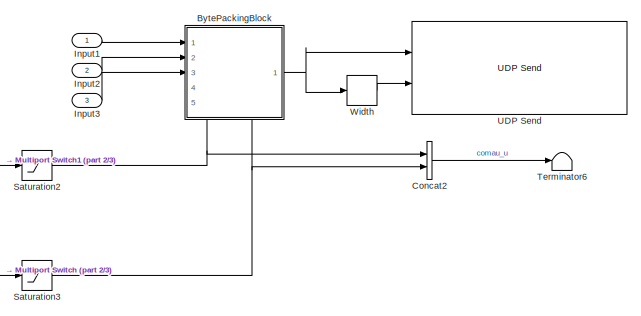
[diagram: root canvas - part 1/3, top right region]
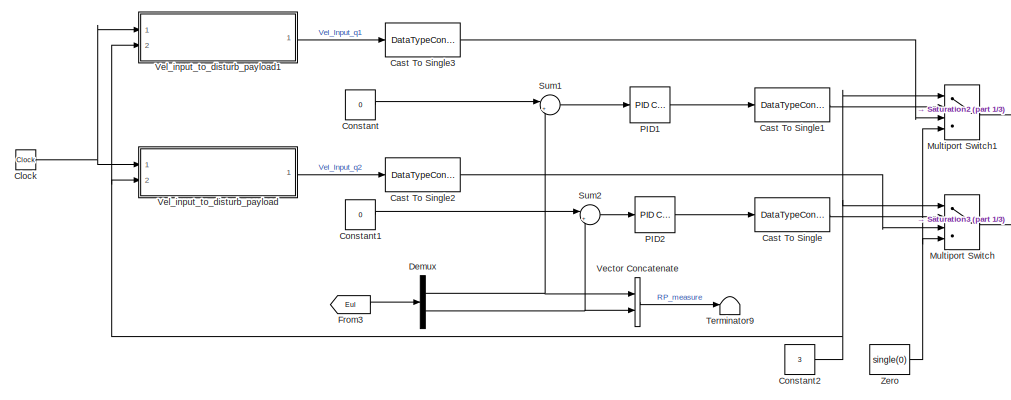
[diagram: root canvas - part 2/3, top left region]
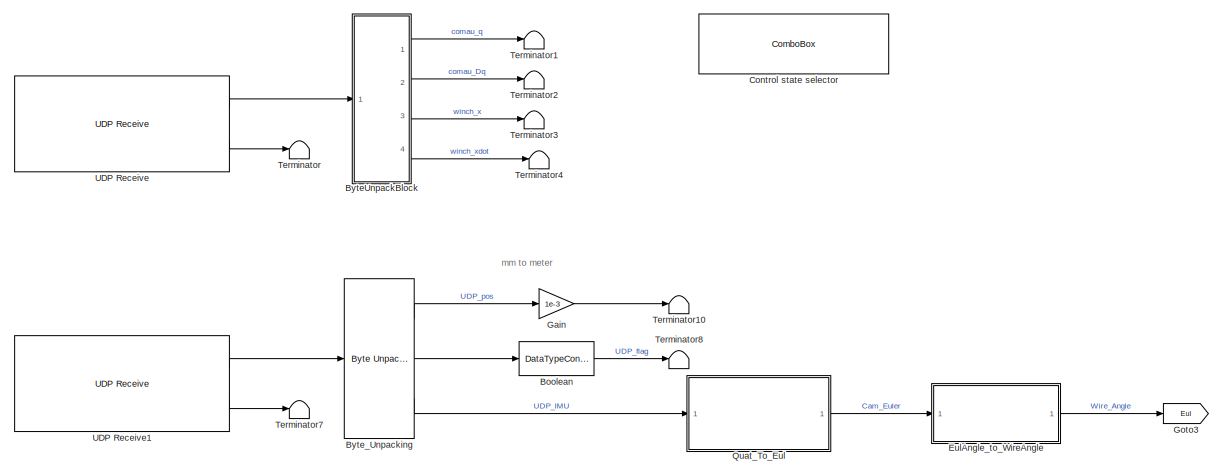
[diagram: root canvas - part 3/3, full width, bottom band]
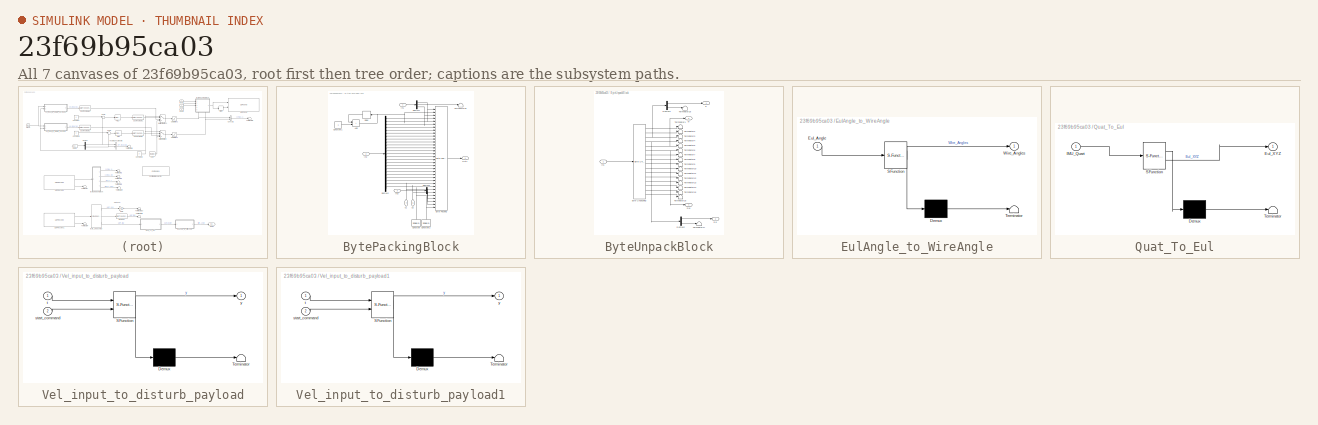
[diagram: thumbnail index - all 7 canvases of the model, root first then tree order]
MODEL slx_23f69b95ca03
KIND model
CONFIG AbsTol = auto
CONFIG EnableMultiTasking = on
CONFIG FixedStep = Ts
CONFIG MaxStep = auto
CONFIG MinStep = auto
CONFIG RelTol = 1e-3
CONFIG SampleTimeConstraint = Unconstrained
CONFIG SolverName = ode4
CONFIG StartTime = 0.0
CONFIG StopTime = inf
WORKSPACE source: mxarray member
WORKSPACE AU1 = 0.174532925199
WORKSPACE AU2 = 0
WORKSPACE AU3 = 0
WORKSPACE AW = 0
WORKSPACE FU1 = 0.1
WORKSPACE FU2 = 0
WORKSPACE FU3 = 0
WORKSPACE FW = 0
WORKSPACE GainU1 = 1
WORKSPACE GainU2 = 1
WORKSPACE GainU3 = 1
WORKSPACE GainW = 1
WORKSPACE KD1 = 0
WORKSPACE KD2 = 0
WORKSPACE KD3 = 0
WORKSPACE KI1 = 0
WORKSPACE KI2 = 0
WORKSPACE KI3 = 0
WORKSPACE KP1 = 1
WORKSPACE KP2 = 1
WORKSPACE KP3 = 1
WORKSPACE N1 = 100
WORKSPACE N2 = 100
WORKSPACE N3 = 100
WORKSPACE SatU1 = 0.174532920122
WORKSPACE SatU2 = 0.174532920122
WORKSPACE SatU3 = 0.174532920122
WORKSPACE SatW = 0.300000011921
WORKSPACE Ts = 0.001
WORKSPACE controlMode = 0
WORKSPACE qref = [0.698131680489 -0.523598790169 -1.57079637051]
BLOCK [DataTypeConversion] Boolean
  OutDataTypeStr = boolean
  RndMeth = Floor
  SaturateOnIntegerOverflow = off
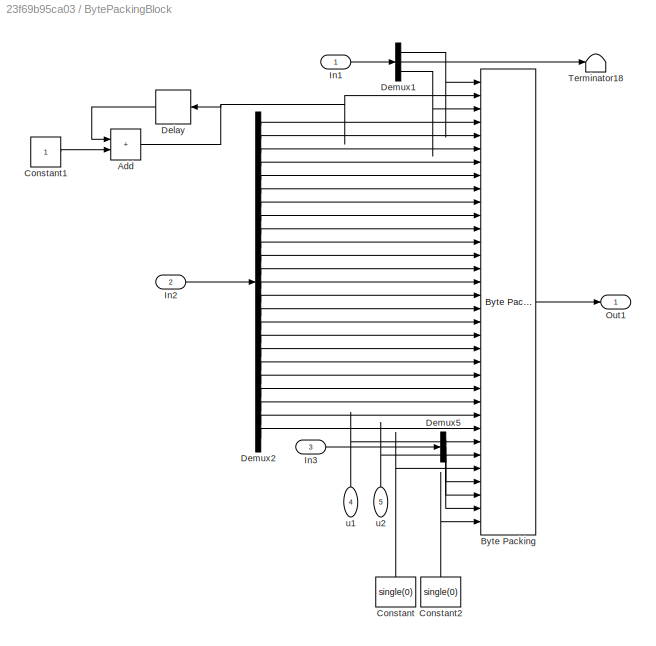
BLOCK [SubSystem] BytePackingBlock
  NameLocation = top
  PortSchema = {"entries":[{"content":{"sides":[{"content":{"connectorIds":["In1","In2","In3"]},"type":"ConnectorPlacement.EquallySpacedRectSide","uuid":"2ce4a3a0-ffcc-43d7-9a0a-8eda699e79f7"},{"content":{"connectorIds":["Out1"],"side":"RIGHT"},"type":"ConnectorPlacement.EquallySpacedRectSide","uuid":"6b0835cb-1c02-4104-b44f-3bd25ad1f1a4"},{"content":{"connectorIds":[],"side":"TOP"},"type":"ConnectorPlacement.Eq...<+407ch>
  Ports = [5, 1]
  RequestExecContextInheritance = off
BLOCK [Sum] BytePackingBlock/Add
  IconShape = rectangular
  Ports = [2, 1]
BLOCK [Reference] BytePackingBlock/Byte Packing  REF=slrealtimeutilitieslib/Byte Packing
  Ports = [34, 1]
  SourceBlock = slrealtimeutilitieslib/Byte Packing
  SourceProductBaseCode = XP
  SourceType = slrealtimebytepacking
BLOCK [Constant] BytePackingBlock/Constant
  NameLocation = right
  Value = single(0)
BLOCK [Constant] BytePackingBlock/Constant1
  OutDataTypeStr = uint32
BLOCK [Constant] BytePackingBlock/Constant2
  NameLocation = right
  Value = single(0)
BLOCK [Delay] BytePackingBlock/Delay
  DelayLength = 1
  InputPortMap = u0
  Ports = [1, 1]
BLOCK [Demux] BytePackingBlock/Demux1
  Outputs = 3
  Ports = [1, 3]
BLOCK [Demux] BytePackingBlock/Demux2
  Outputs = 24
  Ports = [1, 24]
BLOCK [Demux] BytePackingBlock/Demux5
  Outputs = 3
  Ports = [1, 3]
BLOCK [Inport] BytePackingBlock/In1
BLOCK [Inport] BytePackingBlock/In2
  Port = 2
BLOCK [Inport] BytePackingBlock/In3
  Port = 3
BLOCK [Outport] BytePackingBlock/Out1
BLOCK [Terminator] BytePackingBlock/Terminator18
BLOCK [Inport] BytePackingBlock/u1
  Port = 4
BLOCK [Inport] BytePackingBlock/u2
  Port = 5
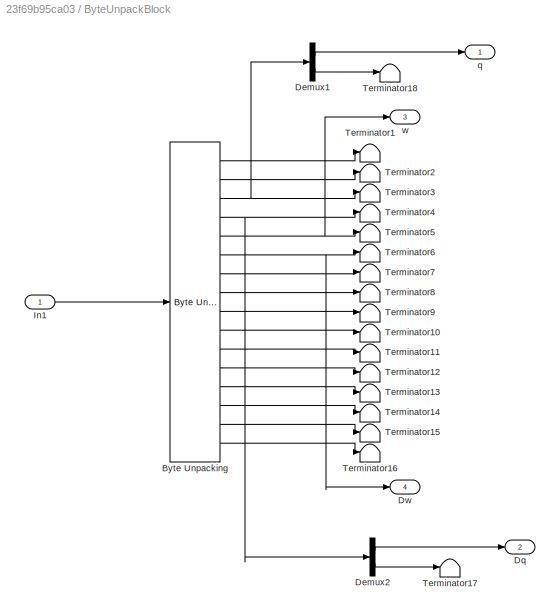
BLOCK [SubSystem] ByteUnpackBlock
  Ports = [1, 4]
  RequestExecContextInheritance = off
BLOCK [Reference] ByteUnpackBlock/Byte Unpacking  REF=slrealtimeutilitieslib/Byte Unpacking
  Ports = [1, 16]
  SourceBlock = slrealtimeutilitieslib/Byte Unpacking
  SourceProductBaseCode = XP
  SourceType = slreraltimebytepacking
BLOCK [Demux] ByteUnpackBlock/Demux1
  Outputs = 2
  Ports = [1, 2]
BLOCK [Demux] ByteUnpackBlock/Demux2
  Outputs = 2
  Ports = [1, 2]
BLOCK [Outport] ByteUnpackBlock/Dq
  Port = 2
BLOCK [Outport] ByteUnpackBlock/Dw
  Port = 4
BLOCK [Inport] ByteUnpackBlock/In1
BLOCK [Terminator] ByteUnpackBlock/Terminator1
BLOCK [Terminator] ByteUnpackBlock/Terminator10
BLOCK [Terminator] ByteUnpackBlock/Terminator11
BLOCK [Terminator] ByteUnpackBlock/Terminator12
BLOCK [Terminator] ByteUnpackBlock/Terminator13
BLOCK [Terminator] ByteUnpackBlock/Terminator14
BLOCK [Terminator] ByteUnpackBlock/Terminator15
BLOCK [Terminator] ByteUnpackBlock/Terminator16
BLOCK [Terminator] ByteUnpackBlock/Terminator17
BLOCK [Terminator] ByteUnpackBlock/Terminator18
BLOCK [Terminator] ByteUnpackBlock/Terminator2
BLOCK [Terminator] ByteUnpackBlock/Terminator3
BLOCK [Terminator] ByteUnpackBlock/Terminator4
BLOCK [Terminator] ByteUnpackBlock/Terminator5
BLOCK [Terminator] ByteUnpackBlock/Terminator6
BLOCK [Terminator] ByteUnpackBlock/Terminator7
BLOCK [Terminator] ByteUnpackBlock/Terminator8
BLOCK [Terminator] ByteUnpackBlock/Terminator9
BLOCK [Outport] ByteUnpackBlock/q
BLOCK [Outport] ByteUnpackBlock/w
  Port = 3
BLOCK [Reference] Byte_Unpacking  REF=slrealtimeutilitieslib/Byte Unpacking
  Ports = [1, 3]
  SourceBlock = slrealtimeutilitieslib/Byte Unpacking
  SourceProductBaseCode = XP
  SourceType = slreraltimebytepacking
BLOCK [DataTypeConversion] Cast To Single
  OutDataTypeStr = single
  RndMeth = Floor
  SaturateOnIntegerOverflow = off
BLOCK [DataTypeConversion] Cast To Single1
  OutDataTypeStr = single
  RndMeth = Floor
  SaturateOnIntegerOverflow = off
BLOCK [DataTypeConversion] Cast To Single2
  OutDataTypeStr = single
  RndMeth = Floor
  SaturateOnIntegerOverflow = off
BLOCK [DataTypeConversion] Cast To Single3
  OutDataTypeStr = single
  RndMeth = Floor
  SaturateOnIntegerOverflow = off
BLOCK [Clock] Clock
BLOCK [Concatenate] Concat2
  ConcatenateDimension = 2
  Ports = [2, 1]
BLOCK [Constant] Constant
  Value = 0
BLOCK [Constant] Constant1
  Value = 0
BLOCK [Constant] Constant2
  Value = 3
BLOCK [ComboBox] Control state selector
  NameLocation = right
  SelectedLabel = Zero-Ref
BLOCK [Demux] Demux
  Outputs = 2
  Ports = [1, 2]
BLOCK [SubSystem] EulAngle_to_WireAngle
  ErrorFcn = Stateflow.Translate.translate
  PermitHierarchicalResolution = ExplicitOnly
  Ports = [1, 1]
  RequestExecContextInheritance = off
  SFBlockType = MATLAB Function
  TreatAsAtomicUnit = on
BLOCK [Demux] EulAngle_to_WireAngle/ Demux 
  Outputs = 1
  Ports = [1, 1]
BLOCK [S-Function] EulAngle_to_WireAngle/ SFunction 
  EnableBusSupport = on
  FunctionName = sf_sfun
  PortCounts = [1 2]
  Ports = [1, 2]
  SFcnIsStateOwnerBlock = off
  SFunctionDeploymentMode = off
  Tag = Stateflow S-Function 1
BLOCK [Terminator] EulAngle_to_WireAngle/ Terminator 
BLOCK [Inport] EulAngle_to_WireAngle/Eul_Angle
BLOCK [Outport] EulAngle_to_WireAngle/Wire_Angles
BLOCK [From] From3
  GotoTag = Eul
BLOCK [Gain] Gain
  Gain = 1e-3
BLOCK [Goto] Goto3
  GotoTag = Eul
BLOCK [Inport] Input1
  OutDataTypeStr = uint32
BLOCK [Inport] Input2
  OutDataTypeStr = single
  Port = 2
BLOCK [Inport] Input3
  OutDataTypeStr = single
  Port = 3
BLOCK [MultiPortSwitch] Multiport Switch
  InputSameDT = off
  Ports = [4, 1]
  SaturateOnIntegerOverflow = off
BLOCK [MultiPortSwitch] Multiport Switch1
  InputSameDT = off
  Ports = [4, 1]
  SaturateOnIntegerOverflow = off
BLOCK [Reference] PID1  REF=slpidlib/PID Controller
  Ports = [1, 1]
  SourceBlock = slpidlib/PID Controller
  SourceProductBaseCode = SL
  SourceType = PID 1dof
BLOCK [Reference] PID2  REF=slpidlib/PID Controller
  Ports = [1, 1]
  SourceBlock = slpidlib/PID Controller
  SourceProductBaseCode = SL
  SourceType = PID 1dof
BLOCK [SubSystem] Quat_To_Eul
  ErrorFcn = Stateflow.Translate.translate
  PermitHierarchicalResolution = ExplicitOnly
  Ports = [1, 1]
  RequestExecContextInheritance = off
  SFBlockType = MATLAB Function
  TreatAsAtomicUnit = on
BLOCK [Demux] Quat_To_Eul/ Demux 
  Outputs = 1
  Ports = [1, 1]
BLOCK [S-Function] Quat_To_Eul/ SFunction 
  EnableBusSupport = on
  FunctionName = sf_sfun
  PortCounts = [1 2]
  Ports = [1, 2]
  SFcnIsStateOwnerBlock = off
  SFunctionDeploymentMode = off
  Tag = Stateflow S-Function 2
BLOCK [Terminator] Quat_To_Eul/ Terminator 
BLOCK [Outport] Quat_To_Eul/Eul_XYZ
BLOCK [Inport] Quat_To_Eul/IMU_Quart
BLOCK [Saturate] Saturation2
  LowerLimit = -0.4
  UpperLimit = 0.4
BLOCK [Saturate] Saturation3
  LowerLimit = -0.4
  UpperLimit = 0.4
BLOCK [Sum] Sum1
  Inputs = |+-
  Ports = [2, 1]
BLOCK [Sum] Sum2
  Inputs = |+-
  Ports = [2, 1]
BLOCK [Terminator] Terminator
BLOCK [Terminator] Terminator1
BLOCK [Terminator] Terminator10
BLOCK [Terminator] Terminator2
BLOCK [Terminator] Terminator3
BLOCK [Terminator] Terminator4
BLOCK [Terminator] Terminator6
BLOCK [Terminator] Terminator7
BLOCK [Terminator] Terminator8
BLOCK [Terminator] Terminator9
BLOCK [Reference] UDP Receive  REF=slrealtimeiplib/UDP Receive
  Ports = [0, 2]
  SourceBlock = slrealtimeiplib/UDP Receive
  SourceProductBaseCode = XP
  SourceType = slrealtimeudpreceive
BLOCK [Reference] UDP Receive1  REF=slrealtimeiplib/UDP Receive
  Ports = [0, 2]
  SourceBlock = slrealtimeiplib/UDP Receive
  SourceProductBaseCode = XP
  SourceType = slrealtimeudpreceive
BLOCK [Reference] UDP Send  REF=slrealtimeiplib/UDP Send
  Ports = [2]
  SourceBlock = slrealtimeiplib/UDP Send
  SourceProductBaseCode = XP
  SourceType = slrealtimeudpsend
BLOCK [Concatenate] Vector Concatenate
  Ports = [2, 1]
BLOCK [SubSystem] Vel_input_to_disturb_payload
  ErrorFcn = Stateflow.Translate.translate
  PermitHierarchicalResolution = ExplicitOnly
  Ports = [2, 1]
  RequestExecContextInheritance = off
  SFBlockType = MATLAB Function
  TreatAsAtomicUnit = on
BLOCK [Demux] Vel_input_to_disturb_payload/ Demux 
  Outputs = 1
  Ports = [1, 1]
BLOCK [S-Function] Vel_input_to_disturb_payload/ SFunction 
  EnableBusSupport = on
  FunctionName = sf_sfun
  PortCounts = [2 2]
  Ports = [2, 2]
  SFcnIsStateOwnerBlock = off
  SFunctionDeploymentMode = off
  Tag = Stateflow S-Function 5
BLOCK [Terminator] Vel_input_to_disturb_payload/ Terminator 
BLOCK [Inport] Vel_input_to_disturb_payload/start_command
  Port = 2
BLOCK [Inport] Vel_input_to_disturb_payload/t
BLOCK [Outport] Vel_input_to_disturb_payload/y
BLOCK [SubSystem] Vel_input_to_disturb_payload1
  ErrorFcn = Stateflow.Translate.translate
  PermitHierarchicalResolution = ExplicitOnly
  Ports = [2, 1]
  RequestExecContextInheritance = off
  SFBlockType = MATLAB Function
  TreatAsAtomicUnit = on
BLOCK [Demux] Vel_input_to_disturb_payload1/ Demux 
  Outputs = 1
  Ports = [1, 1]
BLOCK [S-Function] Vel_input_to_disturb_payload1/ SFunction 
  EnableBusSupport = on
  FunctionName = sf_sfun
  PortCounts = [2 2]
  Ports = [2, 2]
  SFcnIsStateOwnerBlock = off
  SFunctionDeploymentMode = off
  Tag = Stateflow S-Function 6
BLOCK [Terminator] Vel_input_to_disturb_payload1/ Terminator 
BLOCK [Inport] Vel_input_to_disturb_payload1/start_command
  Port = 2
BLOCK [Inport] Vel_input_to_disturb_payload1/t
BLOCK [Outport] Vel_input_to_disturb_payload1/y
BLOCK [Width] Width
BLOCK [Constant] Zero
  Value = single(0)
ANNOTATION (root): mm to meter
LINE Boolean:1 -> Terminator8:1
NET BytePackingBlock/Add:1 -> BytePackingBlock/Byte Packing:2, BytePackingBlock/Delay:1
LINE BytePackingBlock/Byte Packing:1 -> BytePackingBlock/Out1:1
LINE BytePackingBlock/Constant1:1 -> BytePackingBlock/Add:2
LINE BytePackingBlock/Constant2:1 -> BytePackingBlock/Byte Packing:34
LINE BytePackingBlock/Constant:1 -> BytePackingBlock/Byte Packing:30
LINE BytePackingBlock/Delay:1 -> BytePackingBlock/Add:1
LINE BytePackingBlock/Demux1:1 -> BytePackingBlock/Byte Packing:1
LINE BytePackingBlock/Demux1:2 -> BytePackingBlock/Terminator18:1
LINE BytePackingBlock/Demux1:3 -> BytePackingBlock/Byte Packing:3
LINE BytePackingBlock/Demux2:1 -> BytePackingBlock/Byte Packing:4
LINE BytePackingBlock/Demux2:10 -> BytePackingBlock/Byte Packing:13
LINE BytePackingBlock/Demux2:11 -> BytePackingBlock/Byte Packing:14
LINE BytePackingBlock/Demux2:12 -> BytePackingBlock/Byte Packing:15
LINE BytePackingBlock/Demux2:13 -> BytePackingBlock/Byte Packing:16
LINE BytePackingBlock/Demux2:14 -> BytePackingBlock/Byte Packing:17
LINE BytePackingBlock/Demux2:15 -> BytePackingBlock/Byte Packing:18
LINE BytePackingBlock/Demux2:16 -> BytePackingBlock/Byte Packing:19
LINE BytePackingBlock/Demux2:17 -> BytePackingBlock/Byte Packing:20
LINE BytePackingBlock/Demux2:18 -> BytePackingBlock/Byte Packing:21
LINE BytePackingBlock/Demux2:19 -> BytePackingBlock/Byte Packing:22
LINE BytePackingBlock/Demux2:2 -> BytePackingBlock/Byte Packing:5
LINE BytePackingBlock/Demux2:20 -> BytePackingBlock/Byte Packing:23
LINE BytePackingBlock/Demux2:21 -> BytePackingBlock/Byte Packing:24
LINE BytePackingBlock/Demux2:22 -> BytePackingBlock/Byte Packing:25
LINE BytePackingBlock/Demux2:23 -> BytePackingBlock/Byte Packing:26
LINE BytePackingBlock/Demux2:24 -> BytePackingBlock/Byte Packing:27
LINE BytePackingBlock/Demux2:3 -> BytePackingBlock/Byte Packing:6
LINE BytePackingBlock/Demux2:4 -> BytePackingBlock/Byte Packing:7
LINE BytePackingBlock/Demux2:5 -> BytePackingBlock/Byte Packing:8
LINE BytePackingBlock/Demux2:6 -> BytePackingBlock/Byte Packing:9
LINE BytePackingBlock/Demux2:7 -> BytePackingBlock/Byte Packing:10
LINE BytePackingBlock/Demux2:8 -> BytePackingBlock/Byte Packing:11
LINE BytePackingBlock/Demux2:9 -> BytePackingBlock/Byte Packing:12
LINE BytePackingBlock/Demux5:1 -> BytePackingBlock/Byte Packing:31
LINE BytePackingBlock/Demux5:2 -> BytePackingBlock/Byte Packing:32
LINE BytePackingBlock/Demux5:3 -> BytePackingBlock/Byte Packing:33
LINE BytePackingBlock/In1:1 -> BytePackingBlock/Demux1:1
LINE BytePackingBlock/In2:1 -> BytePackingBlock/Demux2:1
LINE BytePackingBlock/In3:1 -> BytePackingBlock/Demux5:1
LINE BytePackingBlock/u1:1 -> BytePackingBlock/Byte Packing:28
LINE BytePackingBlock/u2:1 -> BytePackingBlock/Byte Packing:29
NET BytePackingBlock:1 -> UDP Send:1, Width:1
LINE ByteUnpackBlock/Byte Unpacking:1 -> ByteUnpackBlock/Terminator1:1
LINE ByteUnpackBlock/Byte Unpacking:10 -> ByteUnpackBlock/Terminator10:1
LINE ByteUnpackBlock/Byte Unpacking:11 -> ByteUnpackBlock/Terminator11:1
LINE ByteUnpackBlock/Byte Unpacking:12 -> ByteUnpackBlock/Terminator12:1
LINE ByteUnpackBlock/Byte Unpacking:13 -> ByteUnpackBlock/Terminator13:1
LINE ByteUnpackBlock/Byte Unpacking:14 -> ByteUnpackBlock/Terminator14:1
LINE ByteUnpackBlock/Byte Unpacking:15 -> ByteUnpackBlock/Terminator15:1
LINE ByteUnpackBlock/Byte Unpacking:16 -> ByteUnpackBlock/Terminator16:1
LINE ByteUnpackBlock/Byte Unpacking:2 -> ByteUnpackBlock/Terminator2:1
NET ByteUnpackBlock/Byte Unpacking:3 -> ByteUnpackBlock/Demux1:1, ByteUnpackBlock/Terminator3:1
NET ByteUnpackBlock/Byte Unpacking:4 -> ByteUnpackBlock/Demux2:1, ByteUnpackBlock/Terminator4:1
NET ByteUnpackBlock/Byte Unpacking:5 -> ByteUnpackBlock/Terminator5:1, ByteUnpackBlock/w:1
NET ByteUnpackBlock/Byte Unpacking:6 -> ByteUnpackBlock/Dw:1, ByteUnpackBlock/Terminator6:1
LINE ByteUnpackBlock/Byte Unpacking:7 -> ByteUnpackBlock/Terminator7:1
LINE ByteUnpackBlock/Byte Unpacking:8 -> ByteUnpackBlock/Terminator8:1
LINE ByteUnpackBlock/Byte Unpacking:9 -> ByteUnpackBlock/Terminator9:1
LINE ByteUnpackBlock/Demux1:1 -> ByteUnpackBlock/q:1
LINE ByteUnpackBlock/Demux1:2 -> ByteUnpackBlock/Terminator18:1
LINE ByteUnpackBlock/Demux2:1 -> ByteUnpackBlock/Dq:1
LINE ByteUnpackBlock/Demux2:2 -> ByteUnpackBlock/Terminator17:1
LINE ByteUnpackBlock/In1:1 -> ByteUnpackBlock/Byte Unpacking:1
LINE ByteUnpackBlock:1 -> Terminator1:1
LINE ByteUnpackBlock:2 -> Terminator2:1
LINE ByteUnpackBlock:3 -> Terminator3:1
LINE ByteUnpackBlock:4 -> Terminator4:1
LINE Byte_Unpacking:1 -> Gain:1
LINE Byte_Unpacking:2 -> Boolean:1
LINE Byte_Unpacking:3 -> Quat_To_Eul:1
LINE Cast To Single1:1 -> Multiport Switch1:2
LINE Cast To Single2:1 -> Multiport Switch:3
LINE Cast To Single3:1 -> Multiport Switch1:3
LINE Cast To Single:1 -> Multiport Switch:2
NET Clock:1 -> Vel_input_to_disturb_payload1:1, Vel_input_to_disturb_payload:1
LINE Concat2:1 -> Terminator6:1
LINE Constant1:1 -> Sum2:1
NET Constant2:1 -> Multiport Switch1:1, Multiport Switch:1, Vel_input_to_disturb_payload1:2, Vel_input_to_disturb_payload:2
LINE Constant:1 -> Sum1:1
NET Demux:1 -> Sum1:2, Vector Concatenate:1
NET Demux:2 -> Sum2:2, Vector Concatenate:2
LINE EulAngle_to_WireAngle:1 -> Goto3:1
LINE From3:1 -> Demux:1
LINE Gain:1 -> Terminator10:1
LINE Input1:1 -> BytePackingBlock:1
LINE Input2:1 -> BytePackingBlock:2
LINE Input3:1 -> BytePackingBlock:3
LINE Multiport Switch1:1 -> Saturation2:1
LINE Multiport Switch:1 -> Saturation3:1
LINE PID1:1 -> Cast To Single1:1
LINE PID2:1 -> Cast To Single:1
LINE Quat_To_Eul:1 -> EulAngle_to_WireAngle:1
NET Saturation2:1 -> BytePackingBlock:4, Concat2:1
NET Saturation3:1 -> BytePackingBlock:5, Concat2:2
LINE Sum1:1 -> PID1:1
LINE Sum2:1 -> PID2:1
LINE UDP Receive1:1 -> Byte_Unpacking:1
LINE UDP Receive1:2 -> Terminator7:1
LINE UDP Receive:1 -> ByteUnpackBlock:1
LINE UDP Receive:2 -> Terminator:1
LINE Vector Concatenate:1 -> Terminator9:1
LINE Vel_input_to_disturb_payload1:1 -> Cast To Single3:1
LINE Vel_input_to_disturb_payload:1 -> Cast To Single2:1
LINE Width:1 -> UDP Send:2
NET Zero:1 -> Multiport Switch1:4, Multiport Switch:4
note: NET lines group one-source signal fan-out (src -> all destinations, sorted); 1:1 wires keep LINE
CHART Quat_To_Eul states=1 transitions=1
  STATE_LABEL 'eML_blk_kernel()'
  STATE_LABEL 'SCRIPT:\nfunction Eul_XYZ  = func(IMU_Quart)\n    %Reorder quaternion from luxonis default [x; y; z; w] to matlab default [w, x, y, z]\n    temp = IMU_Quart;\n    q = [temp(4), temp(1), temp(2), temp(3)];\n    \n    Eul_XYZ = quat2eul(q);\n    Eul_XYZ = rad2deg(Eul_XYZ);\nend\n'
CHART Vel_input_to_disturb_payload states=1 transitions=1
  STATE_LABEL 'eML_blk_kernel()'
  STATE_LABEL 'SCRIPT:\nfunction y = fcn(t, start_command)\n%#codegen % Essential for Simulink code generation\n\n% Define persistent variables to store state between time steps\npersistent t_start profile_started;\n\n% Initialize persistent variables at the start of the simulation or first call\nif isempty(t_start)\n    t_start = 0;         % Time when the command was received\n    profile_started = false; % Flag indicat...<+2628ch>'
CHART Vel_input_to_disturb_payload1 states=1 transitions=1
  STATE_LABEL 'eML_blk_kernel()'
  STATE_LABEL 'SCRIPT:\nfunction y = fcn(t, start_command)\n%#codegen % Essential for Simulink code generation\n\n% Define persistent variables to store state between time steps\npersistent t_command_received profile_triggered;\n\n% Initialize persistent variables at the start of the simulation or first call\nif isempty(t_command_received)\n    t_command_received = -1; % Use -1 or similar to indicate command not yet rece...<+3561ch>'
CHART EulAngle_to_WireAngle states=1 transitions=1
  STATE_LABEL 'eML_blk_kernel()'
  STATE_LABEL 'SCRIPT:\nfunction Wire_Angles = Wire_Tilt(Eul_Angle)\n    % --- Configuration ---\n    % Define Rest Angles (Center points for deviation calculation)\n    phi_rest_deg = -0.8270;   % Resting Roll angle (degrees)\n    theta_rest_deg = -9.2933; % Resting Pitch angle (degrees)\n\n    % Define Dead Zone Ranges based on ~0.08 deg width around rest angles\n    phi_rest_min = -0.95;  % Lower bound for Roll dead ...<+1362ch>'
CHART  states=0 transitions=0
CHART  states=0 transitions=0
CHART  states=0 transitions=0
CHART  states=0 transitions=0
